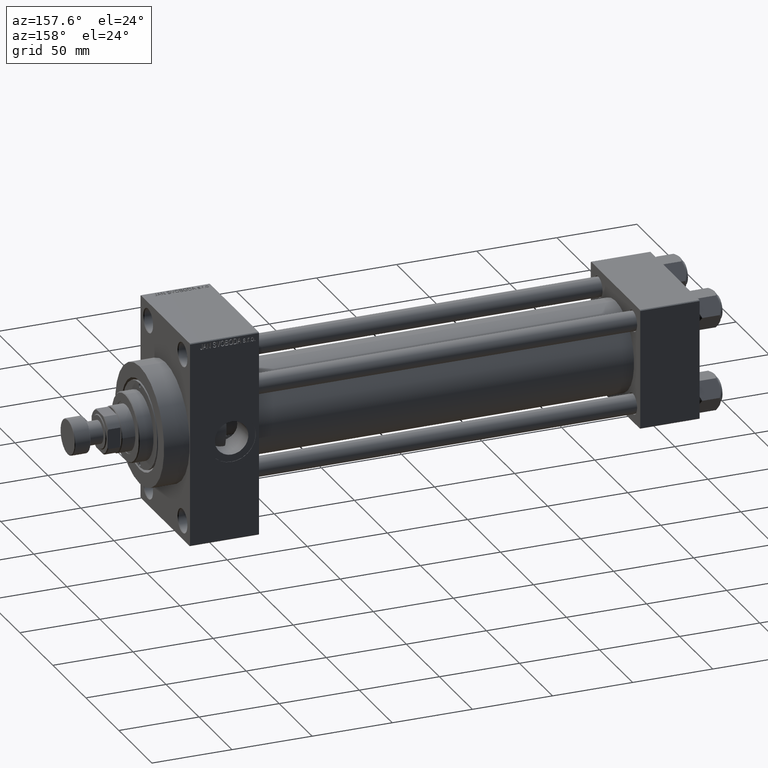
[diagram: clean part render]
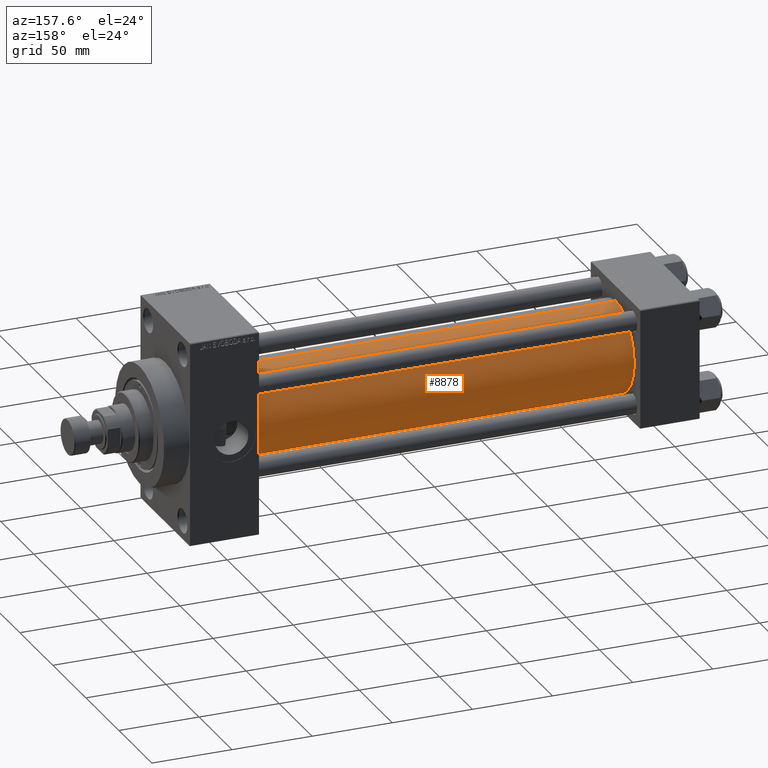
[diagram: same view with one face highlighted and labeled with its STEP entity id]
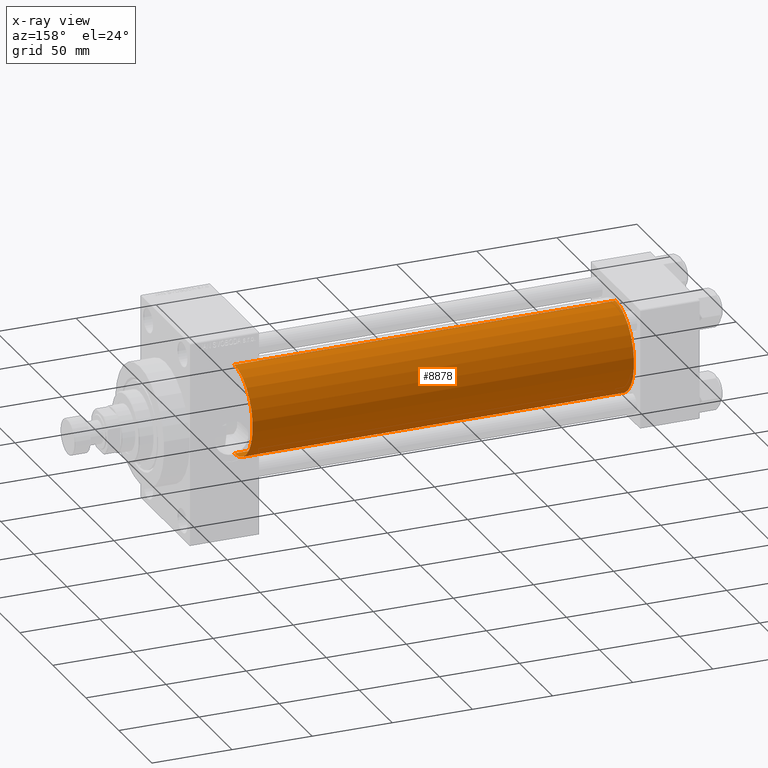
[diagram: x-ray of the same camera — body ghosted, the highlighted face saturated]
A machine part, auxiliary view. The second image highlights one B-rep face of the part: STEP entity #8878.
The next image is the same camera in x-ray: the body ghosted, the highlighted face saturated — about 0% of this face is hidden behind the body in this view.
In plain terms, the highlighted cylindrical surface (partial cylindrical patch) has radius 28 mm, axis along (-1, -0, -0).
Its self-contained STEP definition (entity closure, byte-faithful):
#771 = CARTESIAN_POINT ( 'NONE',  ( 37.00000000000000711, -2.602085213965210642E-15, 28.00000000000000000 ) ) ;
#1006 = EDGE_LOOP ( 'NONE', ( #11350, #6403, #43425, #8343 ) ) ;
#2168 = CARTESIAN_POINT ( 'NONE',  ( 274.9999999999999432, -2.602085213965210642E-15, 28.00000000000000000 ) ) ;
#3773 = VERTEX_POINT ( 'NONE', #41536 ) ;
#4153 = DIRECTION ( 'NONE',  ( 0.000000000000000000, 0.000000000000000000, 1.000000000000000000 ) ) ;
#5017 = DIRECTION ( 'NONE',  ( 0.000000000000000000, 0.000000000000000000, 1.000000000000000000 ) ) ;
#6327 = CARTESIAN_POINT ( 'NONE',  ( 274.9999999999999432, 8.269258236473784371E-16, -28.00000000000000000 ) ) ;
#6403 = ORIENTED_EDGE ( 'NONE', *, *, #7765, .T. ) ;
#7008 = CIRCLE ( 'NONE', #31730, 28.00000000000000000 ) ;
#7765 = EDGE_CURVE ( 'NONE', #39859, #3773, #9963, .T. ) ;
#8251 = DIRECTION ( 'NONE',  ( -1.000000000000000000, -0.000000000000000000, -0.000000000000000000 ) ) ;
#8343 = ORIENTED_EDGE ( 'NONE', *, *, #9463, .F. ) ;
#8796 = CARTESIAN_POINT ( 'NONE',  ( 274.9999999999999432, -2.602085213965210642E-15, 0.000000000000000000 ) ) ;
#8878 = ADVANCED_FACE ( 'NONE', ( #44334 ), #33902, .T. ) ;
#9463 = EDGE_CURVE ( 'NONE', #18907, #28789, #47135, .T. ) ;
#9963 = LINE ( 'NONE', #6327, #16377 ) ;
#10199 = DIRECTION ( 'NONE',  ( -1.000000000000000000, -0.000000000000000000, -0.000000000000000000 ) ) ;
#10341 = CARTESIAN_POINT ( 'NONE',  ( 274.9999999999999432, -2.602085213965210642E-15, 28.00000000000000000 ) ) ;
#11350 = ORIENTED_EDGE ( 'NONE', *, *, #32558, .F. ) ;
#11513 = AXIS2_PLACEMENT_3D ( 'NONE', #8796, #31049, #33964 ) ;
#16377 = VECTOR ( 'NONE', #10199, 1000.000000000000000 ) ;
#18088 = CARTESIAN_POINT ( 'NONE',  ( 274.9999999999999432, 8.269258236473784371E-16, -28.00000000000000000 ) ) ;
#18907 = VERTEX_POINT ( 'NONE', #2168 ) ;
#26648 = CARTESIAN_POINT ( 'NONE',  ( 274.9999999999999432, -2.602085213965210642E-15, 0.000000000000000000 ) ) ;
#28789 = VERTEX_POINT ( 'NONE', #771 ) ;
#31049 = DIRECTION ( 'NONE',  ( 1.000000000000000000, 0.000000000000000000, 0.000000000000000000 ) ) ;
#31141 = AXIS2_PLACEMENT_3D ( 'NONE', #26648, #8251, #4153 ) ;
#31730 = AXIS2_PLACEMENT_3D ( 'NONE', #33397, #38177, #5017 ) ;
#31873 = DIRECTION ( 'NONE',  ( -1.000000000000000000, -0.000000000000000000, -0.000000000000000000 ) ) ;
#32558 = EDGE_CURVE ( 'NONE', #39859, #18907, #39355, .T. ) ;
#33397 = CARTESIAN_POINT ( 'NONE',  ( 37.00000000000000711, -2.602085213965210642E-15, 0.000000000000000000 ) ) ;
#33902 = CYLINDRICAL_SURFACE ( 'NONE', #31141, 28.00000000000000000 ) ;
#33964 = DIRECTION ( 'NONE',  ( 0.000000000000000000, 0.000000000000000000, -1.000000000000000000 ) ) ;
#36686 = EDGE_CURVE ( 'NONE', #3773, #28789, #7008, .T. ) ;
#38177 = DIRECTION ( 'NONE',  ( 1.000000000000000000, -0.000000000000000000, 0.000000000000000000 ) ) ;
#39355 = CIRCLE ( 'NONE', #11513, 28.00000000000000000 ) ;
#39859 = VERTEX_POINT ( 'NONE', #18088 ) ;
#41536 = CARTESIAN_POINT ( 'NONE',  ( 37.00000000000000711, 8.269258236473784371E-16, -28.00000000000000000 ) ) ;
#43425 = ORIENTED_EDGE ( 'NONE', *, *, #36686, .T. ) ;
#44334 = FACE_OUTER_BOUND ( 'NONE', #1006, .T. ) ;
#45079 = VECTOR ( 'NONE', #31873, 1000.000000000000000 ) ;
#47135 = LINE ( 'NONE', #10341, #45079 ) ;